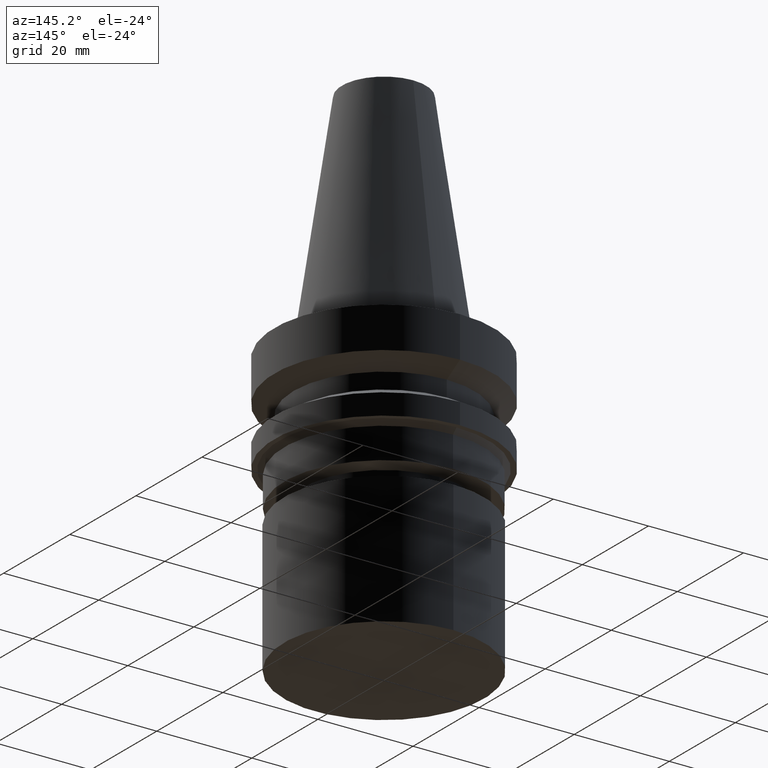
[diagram: clean part render]
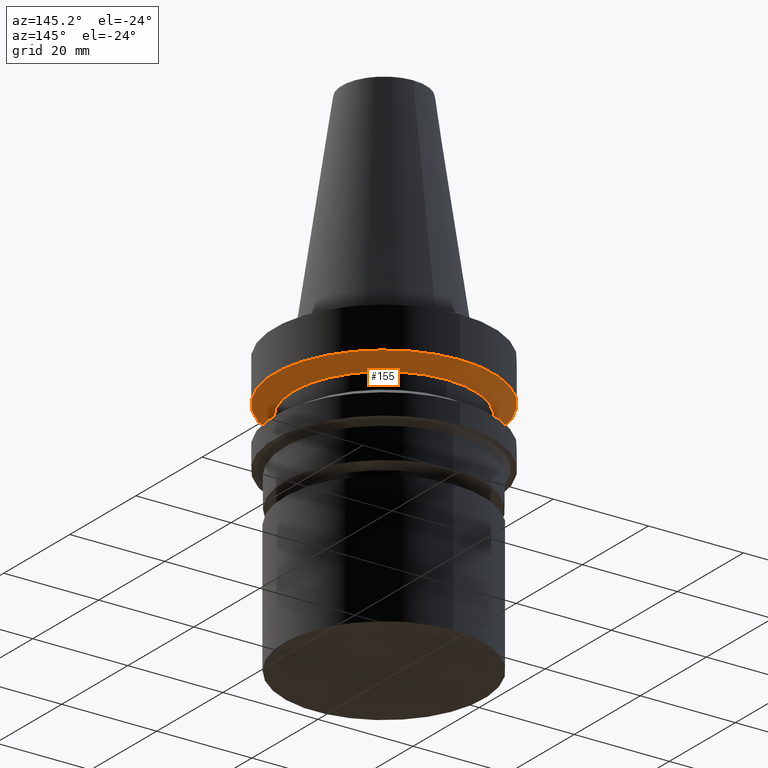
[diagram: same view with one face highlighted and labeled with its STEP entity id]
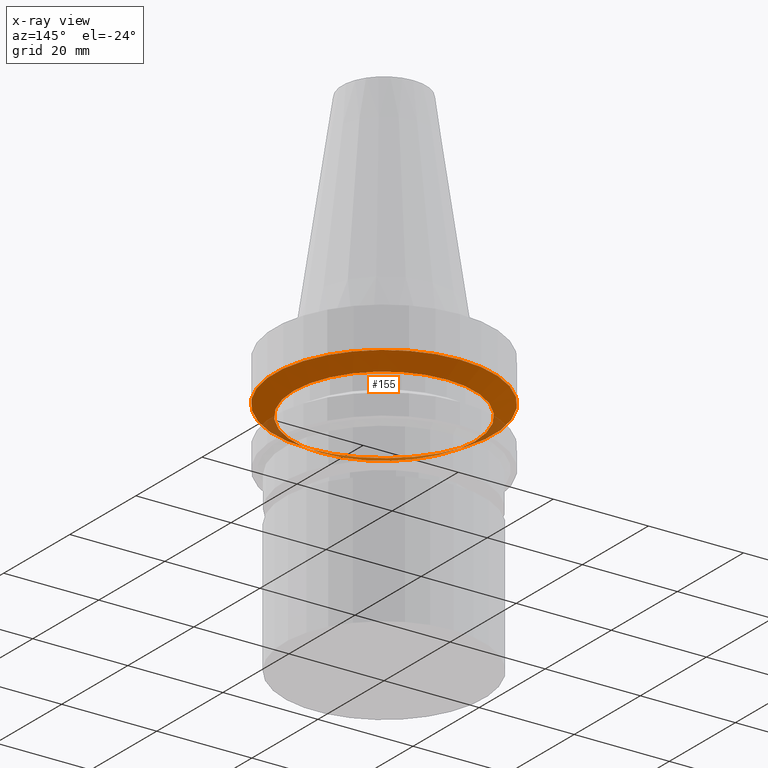
[diagram: x-ray of the same camera — body ghosted, the highlighted face saturated]
A machine part, auxiliary view. The second image highlights one B-rep face of the part: STEP entity #155.
The next image is the same camera in x-ray: the body ghosted, the highlighted face saturated — about 11% of this face is hidden behind the body in this view.
In plain terms, the highlighted conical surface has half-angle 60 deg.
Its self-contained STEP definition (entity closure, byte-faithful):
#108=EDGE_CURVE('Unnamed[1]',#250,#250,#251,.T.);
#155=ADVANCED_FACE('Unnamed[1]',(#322,#323),#324,.T.);
#163=EDGE_CURVE('Unnamed[1]',#335,#335,#336,.T.);
#250=VERTEX_POINT('',#436);
#251=CIRCLE('',#437,23.0);
#322=FACE_BOUND('',#527,.T.);
#323=FACE_BOUND('',#528,.T.);
#324=CONICAL_SURFACE('',#529,21.0,1.04719755058881);
#335=VERTEX_POINT('',#543);
#336=CIRCLE('',#544,19.0);
#436=CARTESIAN_POINT('',(5.87830463590729E-016,23.0,-9.59999999999999));
#437=AXIS2_PLACEMENT_3D('',#632,#633,#634);
#527=EDGE_LOOP('',(#712));
#528=EDGE_LOOP('',(#713));
#529=AXIS2_PLACEMENT_3D('',#714,#715,#716);
#543=CARTESIAN_POINT('',(7.29240495619202E-016,19.0,-11.90940108));
#544=AXIS2_PLACEMENT_3D('',#728,#729,#730);
#632=CARTESIAN_POINT('',(5.87830463590729E-016,1.17566092718146E-015,-9.59999999999999));
#633=DIRECTION('',(6.12323399573677E-017,1.22464679914735E-016,-1.0));
#634=DIRECTION('',(-1.23259516440783E-032,1.0,1.22464679914735E-016));
#712=ORIENTED_EDGE('',*,*,#163,.F.);
#713=ORIENTED_EDGE('',*,*,#108,.T.);
#714=CARTESIAN_POINT('',(6.58535479604966E-016,1.31707095920993E-015,-10.75470054));
#715=DIRECTION('',(-6.12323399573677E-017,-1.22464679914735E-016,1.0));
#716=DIRECTION('',(-1.23259516440783E-032,1.0,1.22464679914735E-016));
#728=CARTESIAN_POINT('',(7.29240495619202E-016,1.4584809912384E-015,-11.90940108));
#729=DIRECTION('',(6.12323399573677E-017,1.22464679914735E-016,-1.0));
#730=DIRECTION('',(-1.23259516440783E-032,1.0,1.22464679914735E-016));